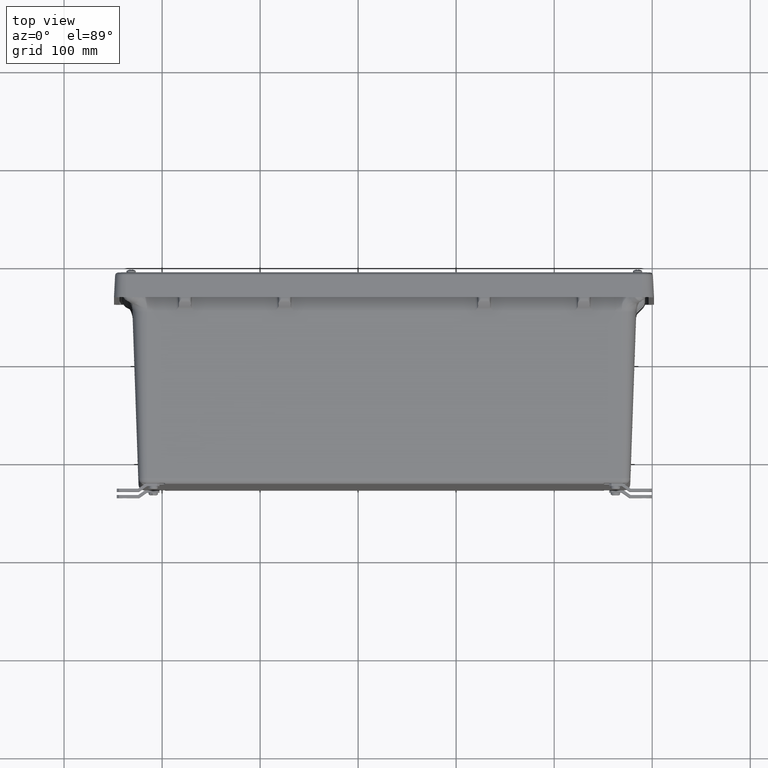
[diagram: clean part render]
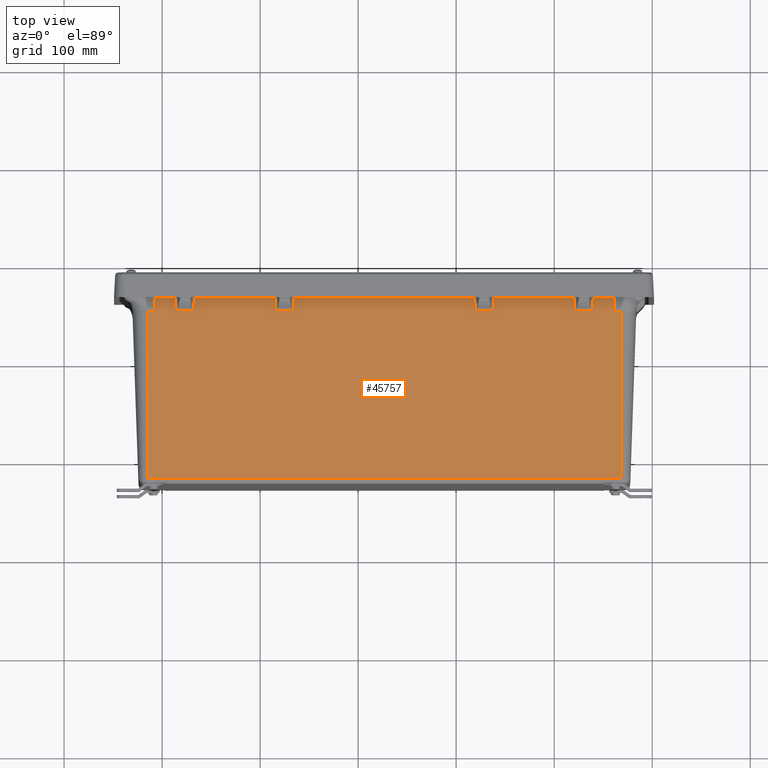
[diagram: same view with one face highlighted and labeled with its STEP entity id]
A machine part, top view. The second image highlights one B-rep face of the part: STEP entity #45757.
In plain terms, the highlighted planar face has unit normal (0, -0.0349, 0.9994).
Its self-contained STEP definition (entity closure, byte-faithful):
#310 = ORIENTED_EDGE ( 'NONE', *, *, #41554, .T. ) ;
#370 = CARTESIAN_POINT ( 'NONE',  ( 8.394183411024840800, -0.4849457614257222100, 8.128668039114026900 ) ) ;
#804 = VERTEX_POINT ( 'NONE', #37555 ) ;
#1358 = ORIENTED_EDGE ( 'NONE', *, *, #15184, .T. ) ;
#1503 = VECTOR ( 'NONE', #17702, 39.37007874015748100 ) ;
#1969 = VECTOR ( 'NONE', #42921, 39.37007874015748100 ) ;
#2511 = VERTEX_POINT ( 'NONE', #24056 ) ;
#2600 = EDGE_CURVE ( 'NONE', #8637, #804, #46029, .T. ) ;
#2725 = B_SPLINE_CURVE_WITH_KNOTS ( 'NONE', 3,
 ( #47356, #14571, #21984, #47689 ),
 .UNSPECIFIED., .F., .F.,
 ( 4, 4 ),
 ( 0.0000000000000000000, 0.007360664315036509300 ),
 .UNSPECIFIED. ) ;
#2929 = EDGE_CURVE ( 'NONE', #22201, #8637, #25888, .T. ) ;
#3460 = VECTOR ( 'NONE', #34682, 39.37007874015748900 ) ;
#3828 = EDGE_CURVE ( 'NONE', #36788, #15493, #20073, .T. ) ;
#3842 = DIRECTION ( 'NONE',  ( -0.01445433466142413300, 0.9992864213068273200, 0.03489585077468926300 ) ) ;
#3918 = VECTOR ( 'NONE', #12962, 39.37007874015748100 ) ;
#3991 = VERTEX_POINT ( 'NONE', #32665 ) ;
#4634 = LINE ( 'NONE', #23104, #42634 ) ;
#5368 = DIRECTION ( 'NONE',  ( -1.000000000000000000, -0.0000000000000000000, -0.0000000000000000000 ) ) ;
#5977 = VERTEX_POINT ( 'NONE', #17381 ) ;
#6052 = EDGE_CURVE ( 'NONE', #47478, #7571, #30915, .T. ) ;
#6773 = CARTESIAN_POINT ( 'NONE',  ( -9.524866526976000000, -0.4849457614257222100, 8.128668039114026900 ) ) ;
#7036 = VERTEX_POINT ( 'NONE', #17779 ) ;
#7571 = VERTEX_POINT ( 'NONE', #29147 ) ;
#7679 = VECTOR ( 'NONE', #28867, 39.37007874015748100 ) ;
#8247 = CARTESIAN_POINT ( 'NONE',  ( -9.524866526976000000, -1.165954744637506300, 8.104886681389478700 ) ) ;
#8549 = DIRECTION ( 'NONE',  ( -0.03487826274237505700, 0.9987827659587182900, 0.03487826274237465500 ) ) ;
#8570 = VECTOR ( 'NONE', #5368, 39.37007874015748100 ) ;
#8578 = VERTEX_POINT ( 'NONE', #39615 ) ;
#8637 = VERTEX_POINT ( 'NONE', #43609 ) ;
#9296 = CARTESIAN_POINT ( 'NONE',  ( -7.628216588975167400, -0.4849457614257222100, 8.128668039114026900 ) ) ;
#9366 = VERTEX_POINT ( 'NONE', #38088 ) ;
#9387 = LINE ( 'NONE', #16256, #16870 ) ;
#9620 = ORIENTED_EDGE ( 'NONE', *, *, #38127, .T. ) ;
#9931 = VECTOR ( 'NONE', #3842, 39.37007874015748900 ) ;
#9988 = CARTESIAN_POINT ( 'NONE',  ( 8.369931653521987900, -1.179425231833247900, 8.104416281611175800 ) ) ;
#10357 = CARTESIAN_POINT ( 'NONE',  ( 9.331625630793352500, -1.197803850408951000, 8.103774486108315900 ) ) ;
#10402 = CARTESIAN_POINT ( 'NONE',  ( 4.388816618017408200, -0.4782675869191047000, 8.128901246106599000 ) ) ;
#10450 = VERTEX_POINT ( 'NONE', #44643 ) ;
#10514 = CARTESIAN_POINT ( 'NONE',  ( -4.412091220230397700, 0.1853417377971131600, 8.152074994367588100 ) ) ;
#10539 = ORIENTED_EDGE ( 'NONE', *, *, #17690, .T. ) ;
#11079 = LINE ( 'NONE', #44207, #9931 ) ;
#11144 = ORIENTED_EDGE ( 'NONE', *, *, #35464, .T. ) ;
#11918 = CARTESIAN_POINT ( 'NONE',  ( -9.524866526976000000, -0.4849457614257222100, 8.128668039114026900 ) ) ;
#12962 = DIRECTION ( 'NONE',  ( -1.000000000000000000, 0.0000000000000000000, 0.0000000000000000000 ) ) ;
#13261 = LINE ( 'NONE', #34372, #3460 ) ;
#13327 = DIRECTION ( 'NONE',  ( 0.0000000000000000000, 0.9993908270190957600, 0.03489949670250101100 ) ) ;
#13645 = EDGE_CURVE ( 'NONE', #15517, #36788, #9387, .T. ) ;
#13705 = VERTEX_POINT ( 'NONE', #20621 ) ;
#13753 = DIRECTION ( 'NONE',  ( -0.03487826274237469700, 0.9987827659587182900, 0.03487826274237465500 ) ) ;
#14571 = CARTESIAN_POINT ( 'NONE',  ( -9.331726484745349400, -1.197803850408951400, 8.103774486108315900 ) ) ;
#14885 = LINE ( 'NONE', #41695, #43103 ) ;
#15184 = EDGE_CURVE ( 'NONE', #24107, #22201, #35238, .T. ) ;
#15493 = VERTEX_POINT ( 'NONE', #35762 ) ;
#15517 = VERTEX_POINT ( 'NONE', #9988 ) ;
#15639 = ORIENTED_EDGE ( 'NONE', *, *, #32745, .T. ) ;
#15932 = EDGE_CURVE ( 'NONE', #15493, #13705, #4634, .T. ) ;
#16073 = ORIENTED_EDGE ( 'NONE', *, *, #37838, .T. ) ;
#16246 = ORIENTED_EDGE ( 'NONE', *, *, #42805, .T. ) ;
#16256 = CARTESIAN_POINT ( 'NONE',  ( -9.524866526976000000, -1.179425231833247900, 8.104416281611175800 ) ) ;
#16779 = VECTOR ( 'NONE', #33991, 39.37007874015748100 ) ;
#16870 = VECTOR ( 'NONE', #38318, 39.37007874015748100 ) ;
#16988 = DIRECTION ( 'NONE',  ( -1.000000000000000000, -0.0000000000000000000, -0.0000000000000000000 ) ) ;
#17177 = CARTESIAN_POINT ( 'NONE',  ( -3.612637811563213400, -0.1991909640031754300, 8.138646816525980700 ) ) ;
#17312 = ORIENTED_EDGE ( 'NONE', *, *, #2929, .T. ) ;
#17381 = CARTESIAN_POINT ( 'NONE',  ( -8.394284264976835900, -0.4849457614257222100, 8.128668039114026900 ) ) ;
#17690 = EDGE_CURVE ( 'NONE', #24051, #47478, #14885, .T. ) ;
#17702 = DIRECTION ( 'NONE',  ( -1.000000000000000000, -0.0000000000000000000, -0.0000000000000000000 ) ) ;
#17779 = CARTESIAN_POINT ( 'NONE',  ( 9.524765673024003100, -7.887744939424663900, 7.870156595425426000 ) ) ;
#18385 = LINE ( 'NONE', #8247, #27047 ) ;
#18499 = EDGE_CURVE ( 'NONE', #31136, #15517, #37851, .T. ) ;
#19161 = CARTESIAN_POINT ( 'NONE',  ( 3.622515735023167100, -0.4849457614257222100, 8.128668039114026900 ) ) ;
#19200 = VECTOR ( 'NONE', #25924, 39.37007874015748900 ) ;
#19536 = DIRECTION ( 'NONE',  ( -1.000000000000000000, -0.0000000000000000000, -0.0000000000000000000 ) ) ;
#19814 = PLANE ( 'NONE',  #38042 ) ;
#19977 = CARTESIAN_POINT ( 'NONE',  ( -9.524866526976000000, -1.203460625607186500, 8.103576947165551700 ) ) ;
#20010 = ORIENTED_EDGE ( 'NONE', *, *, #13645, .T. ) ;
#20073 = LINE ( 'NONE', #46139, #38489 ) ;
#20133 = CARTESIAN_POINT ( 'NONE',  ( -9.524866526976000000, 0.007017149574806738100, 8.145847762527564500 ) ) ;
#20242 = CARTESIAN_POINT ( 'NONE',  ( 3.646767492526018700, -1.179425231833247900, 8.104416281611175800 ) ) ;
#20621 = CARTESIAN_POINT ( 'NONE',  ( 4.388583411024837000, -0.4849457614257222100, 8.128668039114026900 ) ) ;
#21274 = CARTESIAN_POINT ( 'NONE',  ( -9.524866526976000000, -7.887744939424665700, 7.870156595425426000 ) ) ;
#21585 = LINE ( 'NONE', #17177, #1969 ) ;
#21659 = B_SPLINE_CURVE_WITH_KNOTS ( 'NONE', 3,
 ( #28713, #32436, #10357, #36123 ),
 .UNSPECIFIED., .F., .F.,
 ( 4, 4 ),
 ( 0.0000000000000000000, 0.007358589714336115000 ),
 .UNSPECIFIED. ) ;
#21984 = CARTESIAN_POINT ( 'NONE',  ( -9.428244480111732900, -1.203460625607187100, 8.103576947165551700 ) ) ;
#22201 = VERTEX_POINT ( 'NONE', #9296 ) ;
#23104 = CARTESIAN_POINT ( 'NONE',  ( -9.524866526976000000, -0.4849457614257222100, 8.128668039114026900 ) ) ;
#23572 = ORIENTED_EDGE ( 'NONE', *, *, #29924, .T. ) ;
#23804 = DIRECTION ( 'NONE',  ( 0.0000000000000000000, -0.9993908270190957600, -0.03489949670250101100 ) ) ;
#23877 = CARTESIAN_POINT ( 'NONE',  ( -7.613365026353522900, -0.05965265254520885800, 8.143519601735670600 ) ) ;
#24051 = VERTEX_POINT ( 'NONE', #20242 ) ;
#24056 = CARTESIAN_POINT ( 'NONE',  ( 9.225419767319811700, -0.4849457614257222100, 8.128668039114026900 ) ) ;
#24107 = VERTEX_POINT ( 'NONE', #35214 ) ;
#24744 = VECTOR ( 'NONE', #35013, 39.37007874015748100 ) ;
#25411 = ORIENTED_EDGE ( 'NONE', *, *, #30183, .T. ) ;
#25634 = VERTEX_POINT ( 'NONE', #41260 ) ;
#25888 = LINE ( 'NONE', #23877, #24744 ) ;
#25924 = DIRECTION ( 'NONE',  ( -0.01445433466142389100, -0.9992864213068273200, -0.03489585077468926300 ) ) ;
#26437 = FACE_OUTER_BOUND ( 'NONE', #45398, .T. ) ;
#26487 = VECTOR ( 'NONE', #16988, 39.37007874015748100 ) ;
#26899 = VECTOR ( 'NONE', #37742, 39.37007874015748100 ) ;
#26938 = ORIENTED_EDGE ( 'NONE', *, *, #32462, .T. ) ;
#27047 = VECTOR ( 'NONE', #19536, 39.37007874015748100 ) ;
#27442 = CARTESIAN_POINT ( 'NONE',  ( -9.524866526976000000, -0.4849457614257222100, 8.128668039114026900 ) ) ;
#27456 = VECTOR ( 'NONE', #13753, 39.37007874015748100 ) ;
#27633 = VECTOR ( 'NONE', #13327, 39.37007874015748900 ) ;
#28077 = VECTOR ( 'NONE', #33469, 39.37007874015748100 ) ;
#28100 = EDGE_CURVE ( 'NONE', #39932, #24051, #43086, .T. ) ;
#28197 = LINE ( 'NONE', #27442, #8570 ) ;
#28238 = VECTOR ( 'NONE', #28830, 39.37007874015748100 ) ;
#28713 = CARTESIAN_POINT ( 'NONE',  ( 9.524765673024003100, -1.203460625607187100, 8.103576947165551700 ) ) ;
#28830 = DIRECTION ( 'NONE',  ( -1.000000000000000000, -0.0000000000000000000, -0.0000000000000000000 ) ) ;
#28867 = DIRECTION ( 'NONE',  ( -0.03487826274237469700, 0.9987827659587182900, 0.03487826274237465500 ) ) ;
#29001 = LINE ( 'NONE', #44103, #19200 ) ;
#29129 = VERTEX_POINT ( 'NONE', #37959 ) ;
#29147 = CARTESIAN_POINT ( 'NONE',  ( -3.622616588975167600, -0.4849457614257222100, 8.128668039114026900 ) ) ;
#29891 = EDGE_CURVE ( 'NONE', #3991, #9366, #21659, .T. ) ;
#29924 = EDGE_CURVE ( 'NONE', #29129, #24107, #45680, .T. ) ;
#30183 = EDGE_CURVE ( 'NONE', #10450, #25634, #29001, .T. ) ;
#30295 = ORIENTED_EDGE ( 'NONE', *, *, #28100, .T. ) ;
#30809 = ORIENTED_EDGE ( 'NONE', *, *, #2600, .T. ) ;
#30915 = LINE ( 'NONE', #32364, #1503 ) ;
#31063 = ORIENTED_EDGE ( 'NONE', *, *, #45151, .F. ) ;
#31136 = VERTEX_POINT ( 'NONE', #370 ) ;
#31680 = CARTESIAN_POINT ( 'NONE',  ( 9.524765673024003100, 0.007017149574806738100, 8.145847762527564500 ) ) ;
#32215 = VERTEX_POINT ( 'NONE', #19977 ) ;
#32364 = CARTESIAN_POINT ( 'NONE',  ( -9.524866526976000000, -0.4849457614257222100, 8.128668039114026900 ) ) ;
#32436 = CARTESIAN_POINT ( 'NONE',  ( 9.428143626159736000, -1.203460625607187100, 8.103576947165551700 ) ) ;
#32462 = EDGE_CURVE ( 'NONE', #9366, #2511, #11079, .T. ) ;
#32665 = CARTESIAN_POINT ( 'NONE',  ( 9.524765673024003100, -1.203460625607187100, 8.103576947165551700 ) ) ;
#32745 = EDGE_CURVE ( 'NONE', #25634, #32215, #2725, .T. ) ;
#32821 = VERTEX_POINT ( 'NONE', #37397 ) ;
#33469 = DIRECTION ( 'NONE',  ( -0.03487826274237505700, -0.9987827659587182900, -0.03487826274237465500 ) ) ;
#33636 = CARTESIAN_POINT ( 'NONE',  ( 7.652367492526021700, -1.179425231833247900, 8.104416281611175800 ) ) ;
#33991 = DIRECTION ( 'NONE',  ( -1.000000000000000000, -0.0000000000000000000, -0.0000000000000000000 ) ) ;
#34372 = CARTESIAN_POINT ( 'NONE',  ( -9.524866526976000000, 0.007017149574806738100, 8.145847762527564500 ) ) ;
#34682 = DIRECTION ( 'NONE',  ( 0.0000000000000000000, 0.9993908270190957600, 0.03489949670250101100 ) ) ;
#34988 = EDGE_CURVE ( 'NONE', #2511, #31136, #38010, .T. ) ;
#35013 = DIRECTION ( 'NONE',  ( -0.03487826274237540400, -0.9987827659587182900, -0.03487826274237465500 ) ) ;
#35214 = CARTESIAN_POINT ( 'NONE',  ( -4.388684264976837400, -0.4849457614257222100, 8.128668039114026900 ) ) ;
#35238 = LINE ( 'NONE', #11918, #16779 ) ;
#35445 = CARTESIAN_POINT ( 'NONE',  ( 4.364331653521984000, -1.179425231833247900, 8.104416281611175800 ) ) ;
#35464 = EDGE_CURVE ( 'NONE', #7036, #3991, #46006, .T. ) ;
#35754 = EDGE_CURVE ( 'NONE', #5977, #10450, #28197, .T. ) ;
#35762 = CARTESIAN_POINT ( 'NONE',  ( 7.628115735023175900, -0.4849457614257222100, 8.128668039114026900 ) ) ;
#35833 = ORIENTED_EDGE ( 'NONE', *, *, #15932, .T. ) ;
#36123 = CARTESIAN_POINT ( 'NONE',  ( 9.235579219448473200, -1.187309640352875300, 8.104140951998681800 ) ) ;
#36168 = DIRECTION ( 'NONE',  ( -0.03487826274237505700, -0.9987827659587182900, -0.03487826274237465500 ) ) ;
#36700 = LINE ( 'NONE', #21274, #26899 ) ;
#36788 = VERTEX_POINT ( 'NONE', #33636 ) ;
#37030 = VECTOR ( 'NONE', #36168, 39.37007874015748100 ) ;
#37145 = CARTESIAN_POINT ( 'NONE',  ( 8.389543832807719400, -0.6178058983770707800, 8.124028460896907300 ) ) ;
#37397 = CARTESIAN_POINT ( 'NONE',  ( -9.524866526976000000, -7.887744939424663900, 7.870156595425426000 ) ) ;
#37477 = ORIENTED_EDGE ( 'NONE', *, *, #34988, .T. ) ;
#37555 = CARTESIAN_POINT ( 'NONE',  ( -8.370502907252289400, -1.165954744637505600, 8.104886681389478700 ) ) ;
#37742 = DIRECTION ( 'NONE',  ( 1.000000000000000000, 0.0000000000000000000, 0.0000000000000000000 ) ) ;
#37838 = EDGE_CURVE ( 'NONE', #32821, #7036, #36700, .T. ) ;
#37851 = LINE ( 'NONE', #37145, #28077 ) ;
#37959 = CARTESIAN_POINT ( 'NONE',  ( -4.364902907252288200, -1.165954744637505600, 8.104886681389478700 ) ) ;
#38010 = LINE ( 'NONE', #6773, #28238 ) ;
#38042 = AXIS2_PLACEMENT_3D ( 'NONE', #20133, #45847, #23804 ) ;
#38088 = CARTESIAN_POINT ( 'NONE',  ( 9.235579219448473200, -1.187309640352875300, 8.104140951998681800 ) ) ;
#38127 = EDGE_CURVE ( 'NONE', #804, #5977, #38389, .T. ) ;
#38318 = DIRECTION ( 'NONE',  ( -1.000000000000000000, 0.0000000000000000000, 0.0000000000000000000 ) ) ;
#38389 = LINE ( 'NONE', #39500, #27456 ) ;
#38489 = VECTOR ( 'NONE', #38930, 39.37007874015748100 ) ;
#38701 = CARTESIAN_POINT ( 'NONE',  ( -9.524866526976000000, -1.179425231833247900, 8.104416281611175800 ) ) ;
#38930 = DIRECTION ( 'NONE',  ( -0.03487826274237505700, 0.9987827659587182900, 0.03487826274237465500 ) ) ;
#39076 = ORIENTED_EDGE ( 'NONE', *, *, #6052, .T. ) ;
#39500 = CARTESIAN_POINT ( 'NONE',  ( -8.412818435020707100, 0.04580342633914880100, 8.147202209157896400 ) ) ;
#39615 = CARTESIAN_POINT ( 'NONE',  ( -3.646397946699716300, -1.165954744637505600, 8.104886681389478700 ) ) ;
#39677 = CARTESIAN_POINT ( 'NONE',  ( -9.524866526976000000, -1.165954744637506300, 8.104886681389478700 ) ) ;
#39930 = ORIENTED_EDGE ( 'NONE', *, *, #47085, .T. ) ;
#39932 = VERTEX_POINT ( 'NONE', #35445 ) ;
#41159 = ORIENTED_EDGE ( 'NONE', *, *, #18499, .T. ) ;
#41260 = CARTESIAN_POINT ( 'NONE',  ( -9.235680073400471800, -1.187309640352875800, 8.104140951998681800 ) ) ;
#41554 = EDGE_CURVE ( 'NONE', #7571, #8578, #21585, .T. ) ;
#41695 = CARTESIAN_POINT ( 'NONE',  ( 3.589363209350222100, 0.4644183607130463200, 8.161820564786969700 ) ) ;
#42052 = ORIENTED_EDGE ( 'NONE', *, *, #35754, .T. ) ;
#42634 = VECTOR ( 'NONE', #45133, 39.37007874015748100 ) ;
#42669 = ORIENTED_EDGE ( 'NONE', *, *, #3828, .T. ) ;
#42805 = EDGE_CURVE ( 'NONE', #13705, #39932, #46787, .T. ) ;
#42921 = DIRECTION ( 'NONE',  ( -0.03487826274237540400, -0.9987827659587182900, -0.03487826274237465500 ) ) ;
#43086 = LINE ( 'NONE', #38701, #3918 ) ;
#43103 = VECTOR ( 'NONE', #8549, 39.37007874015748100 ) ;
#43609 = CARTESIAN_POINT ( 'NONE',  ( -7.651997946699717400, -1.165954744637506300, 8.104886681389478700 ) ) ;
#43757 = ORIENTED_EDGE ( 'NONE', *, *, #29891, .T. ) ;
#44103 = CARTESIAN_POINT ( 'NONE',  ( -9.218468575260466500, 0.002590606495268963500, 8.145693184237039500 ) ) ;
#44207 = CARTESIAN_POINT ( 'NONE',  ( 9.214387723743000100, 0.2777438817699206500, 8.155301748337805600 ) ) ;
#44643 = CARTESIAN_POINT ( 'NONE',  ( -9.225520621271789100, -0.4849457614257222100, 8.128668039114026900 ) ) ;
#45133 = DIRECTION ( 'NONE',  ( -1.000000000000000000, -0.0000000000000000000, -0.0000000000000000000 ) ) ;
#45151 = EDGE_CURVE ( 'NONE', #32821, #32215, #13261, .T. ) ;
#45398 = EDGE_LOOP ( 'NONE', ( #31063, #16073, #11144, #43757, #26938, #37477, #41159, #20010, #42669, #35833, #16246, #30295, #10539, #39076, #310, #39930, #23572, #1358, #17312, #30809, #9620, #42052, #25411, #15639 ) ) ;
#45680 = LINE ( 'NONE', #10514, #7679 ) ;
#45757 = ADVANCED_FACE ( 'NONE', ( #26437 ), #19814, .T. ) ;
#45847 = DIRECTION ( 'NONE',  ( 0.0000000000000000000, -0.03489949670250101100, 0.9993908270190957600 ) ) ;
#46006 = LINE ( 'NONE', #31680, #27633 ) ;
#46029 = LINE ( 'NONE', #39677, #26487 ) ;
#46139 = CARTESIAN_POINT ( 'NONE',  ( 7.590090424140534300, 0.6039566721710117900, 8.166693349996661400 ) ) ;
#46787 = LINE ( 'NONE', #10402, #37030 ) ;
#47085 = EDGE_CURVE ( 'NONE', #8578, #29129, #18385, .T. ) ;
#47356 = CARTESIAN_POINT ( 'NONE',  ( -9.235680073400471800, -1.187309640352875800, 8.104140951998681800 ) ) ;
#47478 = VERTEX_POINT ( 'NONE', #19161 ) ;
#47689 = CARTESIAN_POINT ( 'NONE',  ( -9.524866526976000000, -1.203460625607186500, 8.103576947165551700 ) ) ;